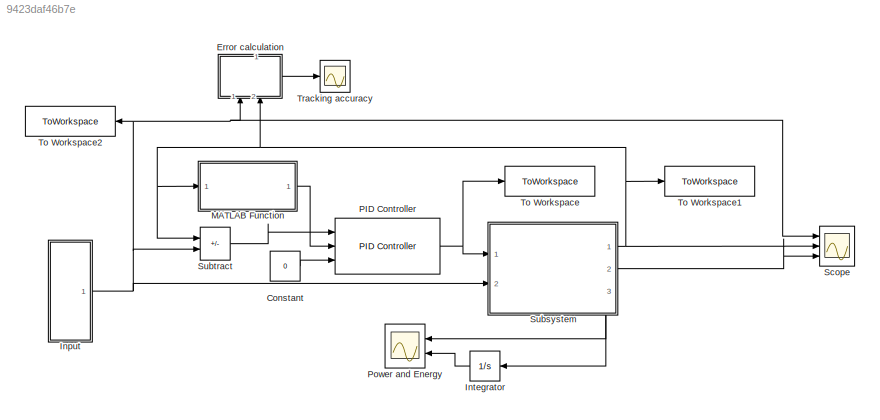
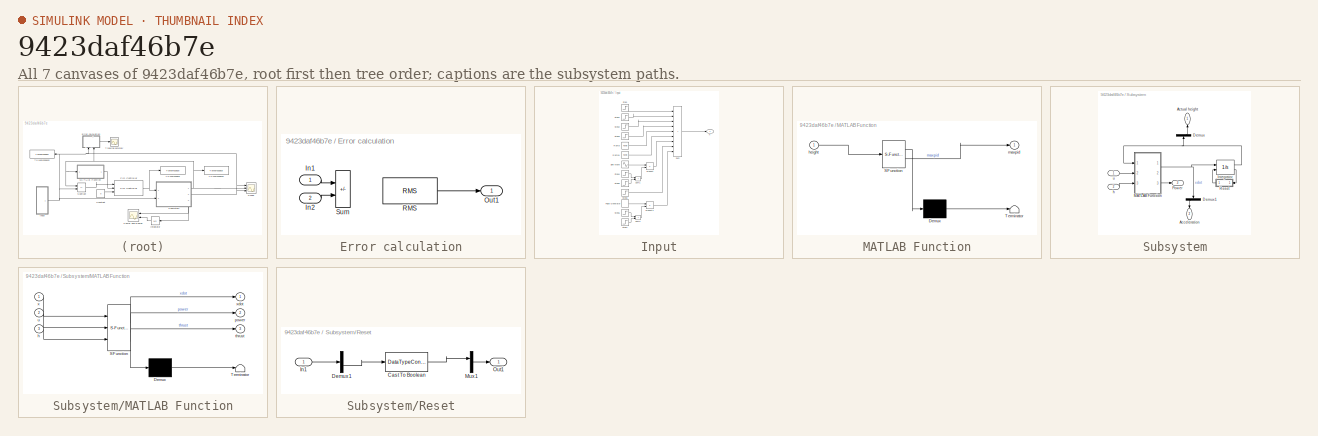
[diagram: thumbnail index - all 7 canvases of the model, root first then tree order]
MODEL slx_9423daf46b7e
KIND model
CONFIG AbsTol = auto
CONFIG EnableMultiTasking = off
CONFIG FixedStep = 0.005
CONFIG MaxStep = auto
CONFIG MinStep = auto
CONFIG RelTol = 1e-3
CONFIG SampleTimeConstraint = Unconstrained
CONFIG SolverName = FixedStepAuto
CONFIG StartTime = 0.0
CONFIG StopTime = 100
BLOCK [Constant] Constant
  Value = 0
BLOCK [SubSystem] Error calculation
  NameLocation = top
  PortSchema = {"entries":[{"content":{"sides":[{"content":{"connectorIds":["In1","In2"]},"type":"ConnectorPlacement.EquallySpacedRectSide","uuid":"2e6f02a1-c3a7-4185-86c2-d40f93178419"},{"content":{"connectorIds":[],"side":"RIGHT"},"type":"ConnectorPlacement.EquallySpacedRectSide","uuid":"00744759-e361-4441-9df3-2202444a8ed4"},{"content":{"connectorIds":[],"side":"TOP"},"type":"ConnectorPlacement.EquallySpacedR...<+390ch>
  Ports = [2, 1]
  RequestExecContextInheritance = off
BLOCK [Inport] Error calculation/In1
BLOCK [Inport] Error calculation/In2
  Port = 2
BLOCK [Outport] Error calculation/Out1
BLOCK [Reference] Error calculation/RMS  REF=dspstat3/RMS
  Commented = on
  Ports = [1, 1]
  SourceBlock = dspstat3/RMS
  SourceProductBaseCode = DS
  SourceType = RMS
  UserDataPersistent = on
BLOCK [Sum] Error calculation/Sum
  IconShape = rectangular
  Inputs = +-
  Ports = [2, 1]
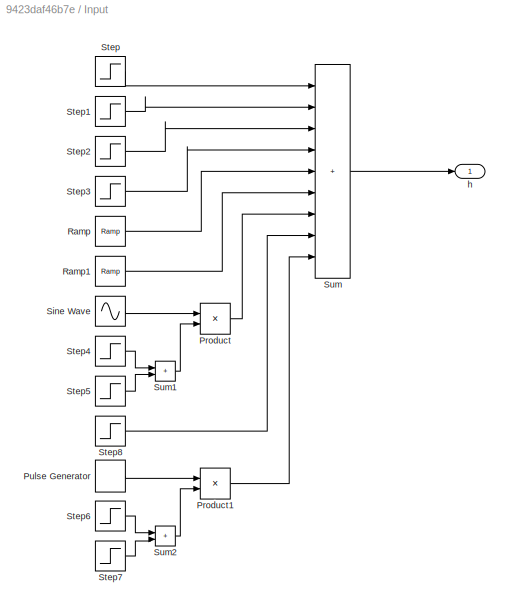
BLOCK [SubSystem] Input
  Ports = [0, 1]
  RequestExecContextInheritance = off
BLOCK [Product] Input/Product
  Ports = [2, 1]
BLOCK [Product] Input/Product1
  Ports = [2, 1]
BLOCK [DiscretePulseGenerator] Input/Pulse Generator
  Ports = [0, 1]
  PulseType = Time based
  PulseWidth = 50
BLOCK [Reference] Input/Ramp  REF=simulink/Sources/Ramp
  Ports = [0, 1]
  SourceBlock = simulink/Sources/Ramp
  SourceProductBaseCode = SL
  SourceType = Ramp
BLOCK [Reference] Input/Ramp1  REF=simulink/Sources/Ramp
  Ports = [0, 1]
  SourceBlock = simulink/Sources/Ramp
  SourceProductBaseCode = SL
  SourceType = Ramp
BLOCK [Sin] Input/Sine Wave
  Amplitude = 0.3
  Ports = [0, 1]
  SampleTime = 0
BLOCK [Step] Input/Step
  After = 1.44
  SampleTime = 0
  Time = 0
BLOCK [Step] Input/Step1
  After = -1.44
  SampleTime = 0
  Time = 10
BLOCK [Step] Input/Step2
  After = 0.4
  SampleTime = 0
  Time = 20
BLOCK [Step] Input/Step3
  After = -0.4
  SampleTime = 0
  Time = 30
BLOCK [Step] Input/Step4
  SampleTime = 0
  Time = 60
BLOCK [Step] Input/Step5
  After = -1
  SampleTime = 0
  Time = 70
BLOCK [Step] Input/Step6
  SampleTime = 0
  Time = 80
BLOCK [Step] Input/Step7
  After = -1
  SampleTime = 0
  Time = 90
BLOCK [Step] Input/Step8
  After = -0.3
  SampleTime = 0
  Time = 80
BLOCK [Sum] Input/Sum
  IconShape = rectangular
  Inputs = +++++++++
  Ports = [9, 1]
BLOCK [Sum] Input/Sum1
  IconShape = rectangular
  Ports = [2, 1]
BLOCK [Sum] Input/Sum2
  IconShape = rectangular
  Ports = [2, 1]
BLOCK [Outport] Input/h
BLOCK [Integrator] Integrator
  Ports = [1, 1]
BLOCK [SubSystem] MATLAB Function
  ErrorFcn = Stateflow.Translate.translate
  PermitHierarchicalResolution = ExplicitOnly
  Ports = [1, 1]
  RequestExecContextInheritance = off
  SFBlockType = MATLAB Function
  TreatAsAtomicUnit = on
BLOCK [Demux] MATLAB Function/ Demux 
  Outputs = 1
  Ports = [1, 1]
BLOCK [S-Function] MATLAB Function/ SFunction 
  EnableBusSupport = on
  FunctionName = sf_sfun
  PortCounts = [1 2]
  Ports = [1, 2]
  SFcnIsStateOwnerBlock = off
  SFunctionDeploymentMode = off
  Tag = Stateflow S-Function 1
BLOCK [Terminator] MATLAB Function/ Terminator 
BLOCK [Inport] MATLAB Function/height
BLOCK [Outport] MATLAB Function/maxpid
BLOCK [Reference] PID Controller  REF=pid_lib/PID Controller
  NameLocation = top
  Ports = [3, 1]
  SourceBlock = pid_lib/PID Controller
  SourceProductBaseCode = SL
  SourceType = PID 1dof
BLOCK [Scope] Power and Energy
  Floating = off
  NameLocation = top
  NumInputPorts = 2
  Ports = [2]
  ScopeSpecificationString = Simulink.scopes.TimeScopeBlockCfg('CurrentConfiguration', extmgr.ConfigurationSet(extmgr.Configuration('Core','General UI',true),extmgr.Configuration('Core','Source UI',true),extmgr.Configuration('Sources','WiredSimulink',true,'DataLoggingVariableName','ScopeData1'),extmgr.Configuration('Visuals','Time Domain',true,'SerializedDisplays',{struct('MinYLimReal','-56.27662','MaxYLimReal','565.67838','Y...<+2287ch>
BLOCK [Scope] Scope
  Floating = off
  NumInputPorts = 3
  Ports = [3]
  ScopeSpecificationString = Simulink.scopes.TimeScopeBlockCfg('CurrentConfiguration', extmgr.ConfigurationSet(extmgr.Configuration('Core','General UI',true),extmgr.Configuration('Core','Source UI',true),extmgr.Configuration('Sources','WiredSimulink',true),extmgr.Configuration('Visuals','Time Domain',true,'SerializedDisplays',{struct('MinYLimReal','-0.18','MaxYLimReal','1.62','YLabelReal','','MinYLimMag','0.00000','MaxYLimMag...<+3028ch>
BLOCK [SubSystem] Subsystem
  PortSchema = {"entries":[{"content":{"sides":[{"content":{"connectorIds":["In1","In2"]},"type":"ConnectorPlacement.EquallySpacedRectSide","uuid":"572f826c-3722-4f31-aa09-a23c7543edd6"},{"content":{"connectorIds":["Out1","Out2"],"side":"RIGHT"},"type":"ConnectorPlacement.EquallySpacedRectSide","uuid":"1fb53aaa-4365-43d4-913e-268d0517c7d9"},{"content":{"connectorIds":[],"side":"TOP"},"type":"ConnectorPlacement.E...<+403ch>
  Ports = [2, 3]
  RequestExecContextInheritance = off
BLOCK [Outport] Subsystem/Acceleration
  NameLocation = left
  Port = 2
BLOCK [Outport] Subsystem/Actual height
  NameLocation = right
BLOCK [Demux] Subsystem/Demux
  NameLocation = left
  Outputs = 2
  Ports = [1, 2]
BLOCK [Demux] Subsystem/Demux1
  NameLocation = left
  Outputs = 2
  Ports = [1, 2]
BLOCK [Integrator] Subsystem/Integrator
  ExternalReset = rising
  InitialCondition = [0;0]
  LimitOutput = on
  LowerSaturationLimit = [-inf,0]
  Ports = [2, 2]
  ShowSaturationPort = on
  UpperSaturationLimit = [inf,1.44]
  ZeroCross = off
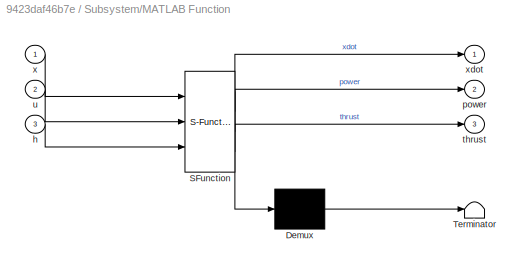
BLOCK [SubSystem] Subsystem/MATLAB Function
  ErrorFcn = Stateflow.Translate.translate
  PermitHierarchicalResolution = ExplicitOnly
  Ports = [3, 3]
  RequestExecContextInheritance = off
  SFBlockType = MATLAB Function
  TreatAsAtomicUnit = on
BLOCK [Demux] Subsystem/MATLAB Function/ Demux 
  Outputs = 1
  Ports = [1, 1]
BLOCK [S-Function] Subsystem/MATLAB Function/ SFunction 
  EnableBusSupport = on
  FunctionName = sf_sfun
  PortCounts = [3 4]
  Ports = [3, 4]
  SFcnIsStateOwnerBlock = off
  SFunctionDeploymentMode = off
  Tag = Stateflow S-Function 2
BLOCK [Terminator] Subsystem/MATLAB Function/ Terminator 
BLOCK [Inport] Subsystem/MATLAB Function/h
  Port = 3
BLOCK [Outport] Subsystem/MATLAB Function/power
  Port = 2
BLOCK [Outport] Subsystem/MATLAB Function/thrust
  Port = 3
BLOCK [Inport] Subsystem/MATLAB Function/u
  Port = 2
BLOCK [Inport] Subsystem/MATLAB Function/x
BLOCK [Outport] Subsystem/MATLAB Function/xdot
BLOCK [Outport] Subsystem/Power
  Port = 3
BLOCK [SubSystem] Subsystem/Reset
  Ports = [1, 1]
  RequestExecContextInheritance = off
BLOCK [DataTypeConversion] Subsystem/Reset/Cast To Boolean
  OutDataTypeStr = boolean
  RndMeth = Floor
  SaturateOnIntegerOverflow = off
BLOCK [Demux] Subsystem/Reset/Demux1
  Outputs = 2
  Ports = [1, 2]
BLOCK [Inport] Subsystem/Reset/In1
BLOCK [Mux] Subsystem/Reset/Mux1
  DisplayOption = bar
  Inputs = 2
  Ports = [2, 1]
BLOCK [Outport] Subsystem/Reset/Out1
BLOCK [Inport] Subsystem/h
  Port = 2
BLOCK [Inport] Subsystem/u
BLOCK [Sum] Subtract
  IconShape = rectangular
  Inputs = -+
  Ports = [2, 1]
BLOCK [ToWorkspace] To Workspace
  FixptAsFi = on
  MaxDataPoints = inf
  Ports = [1]
  SampleTime = -1
  SaveFormat = Timeseries
  VariableName = PID
BLOCK [ToWorkspace] To Workspace1
  FixptAsFi = on
  MaxDataPoints = inf
  Ports = [1]
  SampleTime = -1
  SaveFormat = Timeseries
  VariableName = height
BLOCK [ToWorkspace] To Workspace2
  FixptAsFi = on
  MaxDataPoints = inf
  Ports = [1]
  SampleTime = -1
  SaveFormat = Timeseries
  VariableName = input
BLOCK [Scope] Tracking accuracy
  Floating = off
  NumInputPorts = 1
  Ports = [1]
  ScopeSpecificationString = Simulink.scopes.TimeScopeBlockCfg('CurrentConfiguration', extmgr.ConfigurationSet(extmgr.Configuration('Core','General UI',true),extmgr.Configuration('Core','Source UI',true),extmgr.Configuration('Sources','WiredSimulink',true,'DataLoggingVariableName','ScopeData2'),extmgr.Configuration('Visuals','Time Domain',true,'SerializedDisplays',{struct('MinYLimReal','-1.00000','MaxYLimReal','1.00000','YLab...<+1444ch>
LINE Constant:1 -> PID Controller:3
LINE Error calculation/In1:1 -> Error calculation/Sum:1
LINE Error calculation/In2:1 -> Error calculation/Sum:2
LINE Error calculation/RMS:1 -> Error calculation/Out1:1
LINE Error calculation:1 -> Tracking accuracy:1
LINE Input/Product1:1 -> Input/Sum:9
LINE Input/Product:1 -> Input/Sum:7
LINE Input/Pulse Generator:1 -> Input/Product1:1
LINE Input/Ramp1:1 -> Input/Sum:6
LINE Input/Ramp:1 -> Input/Sum:5
LINE Input/Sine Wave:1 -> Input/Product:1
LINE Input/Step1:1 -> Input/Sum:2
LINE Input/Step2:1 -> Input/Sum:3
LINE Input/Step3:1 -> Input/Sum:4
LINE Input/Step4:1 -> Input/Sum1:1
LINE Input/Step5:1 -> Input/Sum1:2
LINE Input/Step6:1 -> Input/Sum2:1
LINE Input/Step7:1 -> Input/Sum2:2
LINE Input/Step8:1 -> Input/Sum:8
LINE Input/Step:1 -> Input/Sum:1
LINE Input/Sum1:1 -> Input/Product:2
LINE Input/Sum2:1 -> Input/Product1:2
LINE Input/Sum:1 -> Input/h:1
NET Input:1 -> Error calculation:1, Scope:1, Subsystem:2, Subtract:2, To Workspace2:1
LINE Integrator:1 -> Power and Energy:2
LINE MATLAB Function:1 -> PID Controller:2
NET PID Controller:1 -> Subsystem:1, To Workspace:1
LINE Subsystem/Demux1:1 -> Subsystem/Acceleration:1
LINE Subsystem/Demux:2 -> Subsystem/Actual height:1
NET Subsystem/Integrator:1 -> Subsystem/Demux:1, Subsystem/MATLAB Function:1
LINE Subsystem/Integrator:2 -> Subsystem/Reset:1
NET Subsystem/MATLAB Function:1 -> Subsystem/Demux1:1, Subsystem/Integrator:1
LINE Subsystem/MATLAB Function:2 -> Subsystem/Power:1
LINE Subsystem/Reset/Cast To Boolean:1 -> Subsystem/Reset/Mux1:1
LINE Subsystem/Reset/Demux1:2 -> Subsystem/Reset/Cast To Boolean:1
LINE Subsystem/Reset/In1:1 -> Subsystem/Reset/Demux1:1
LINE Subsystem/Reset/Mux1:1 -> Subsystem/Reset/Out1:1
LINE Subsystem/Reset:1 -> Subsystem/Integrator:2
LINE Subsystem/h:1 -> Subsystem/MATLAB Function:3
LINE Subsystem/u:1 -> Subsystem/MATLAB Function:2
NET Subsystem:1 -> Error calculation:2, MATLAB Function:1, Scope:2, Subtract:1, To Workspace1:1
LINE Subsystem:2 -> Scope:3
NET Subsystem:3 -> Integrator:1, Power and Energy:1
LINE Subtract:1 -> PID Controller:1
note: NET lines group one-source signal fan-out (src -> all destinations, sorted); 1:1 wires keep LINE
CHART MATLAB Function states=1 transitions=1
  STATE_LABEL 'eML_blk_kernel()'
  STATE_LABEL 'SCRIPT:\nfunction maxpid = maxpid(height)\n\ncartmass        = 0.454;      %kg\narmmass         = 0.04;        %kg\ncablemass       = 2*(0.462*0.190*height+0.335*0.190); %kg\n\nmass = cartmass + armmass + cablemass; %kg\n\nmaxt = mass * 9.81 -0.5;\n\nmaxpid = 0.000106460047187 * maxt^6 + 0.001682145469029 * maxt^5 - 0.085966748628573 * maxt^4 + 0.915086428052733 * maxt^3 - 4.301170611461207 * maxt^2 + 19.048...<+44ch>'
CHART Subsystem/MATLAB Function states=1 transitions=1
  STATE_LABEL 'eML_blk_kernel()'
  STATE_LABEL 'SCRIPT:\nfunction [xdot,power,thrust] = model(x,u,h)\n%inputs - x: (2x1) state vector\n%         x(1)- v   m/s\n%         x(2)- z   m\n%       - u:  control vector\n%         u(1)- engine throttle as percentage\n\ng=9.81;\n\ncartmass        = 0.454;      %kg\narmmass         = 0.04;        %kg\nmukin           = 0.14;\nmustatic        = 0.17;\nnormalforce     = 7.5;        %N  \ncablemass       = 2*(0.462*0.190*...<+741ch>'
CHART  states=0 transitions=0
CHART  states=0 transitions=0
